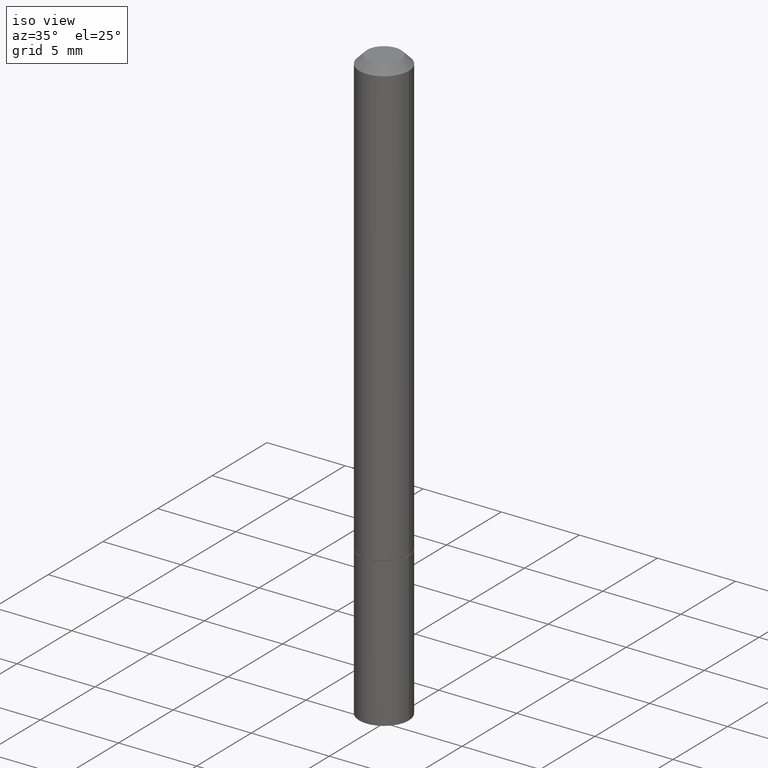
[diagram: clean part render]
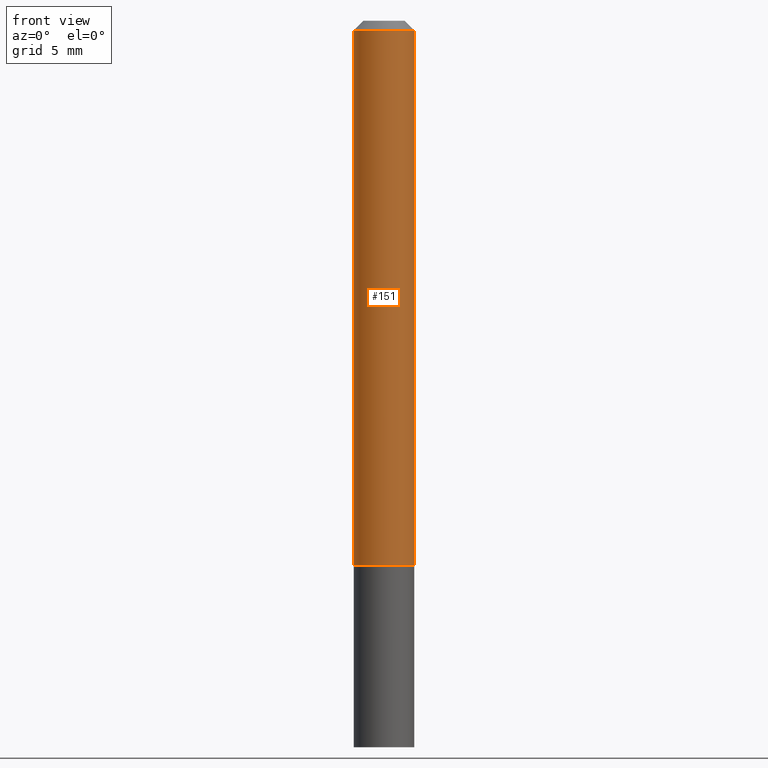
[diagram: tour spotlight — one face highlighted and labeled with its STEP entity id]
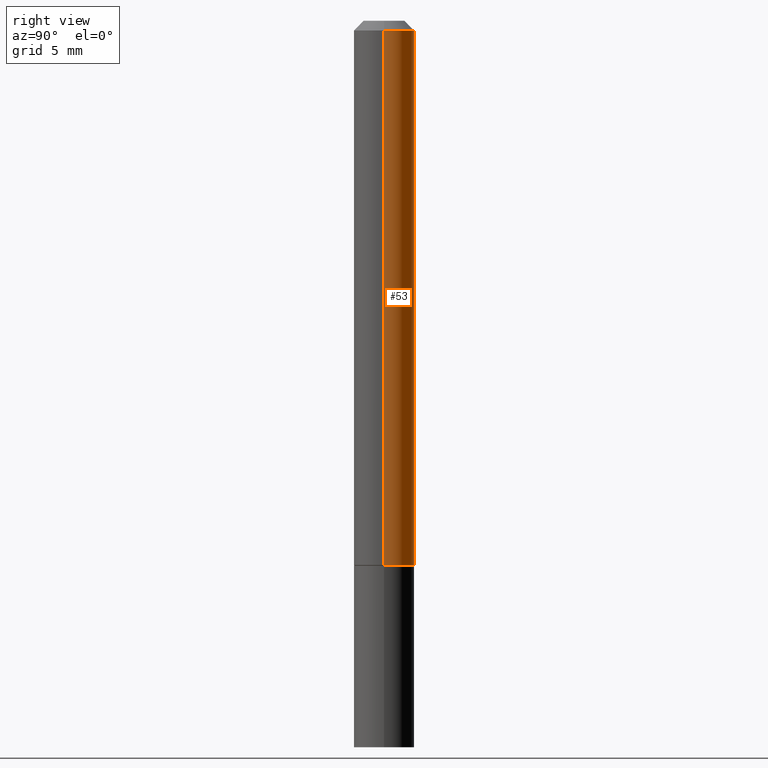
[diagram: tour spotlight — one face highlighted and labeled with its STEP entity id]
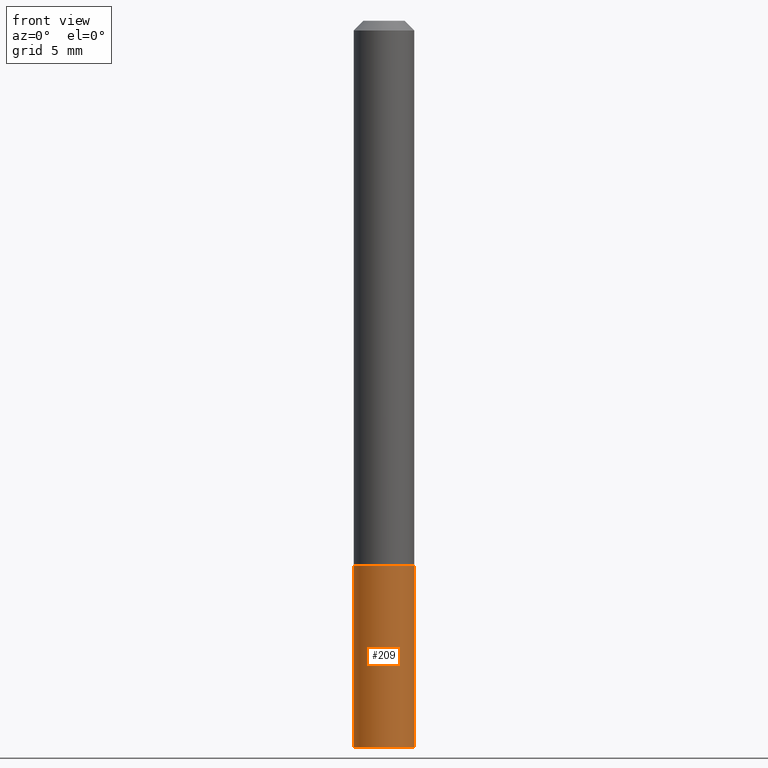
[diagram: tour spotlight — one face highlighted and labeled with its STEP entity id]
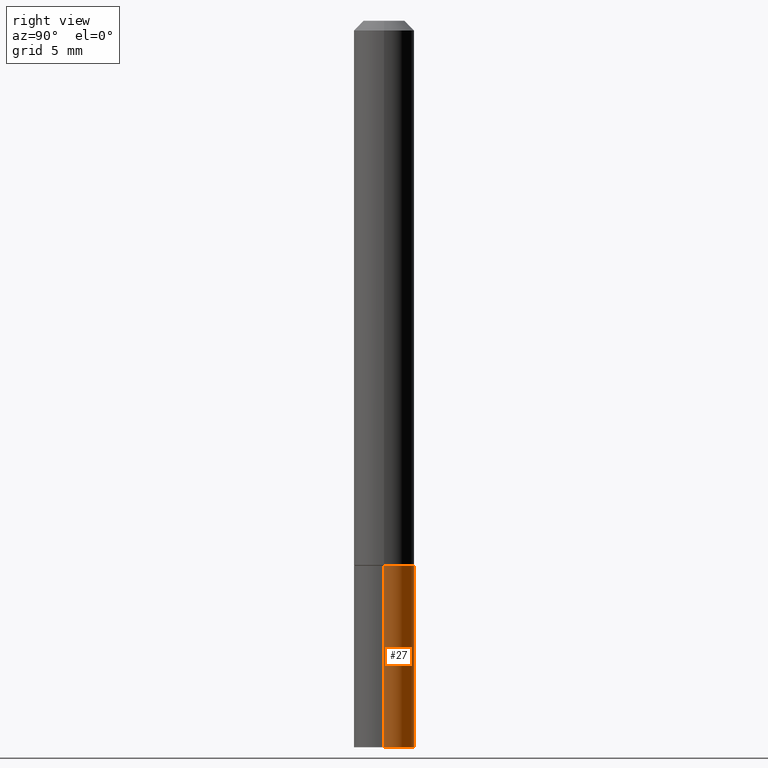
[diagram: tour spotlight — one face highlighted and labeled with its STEP entity id]
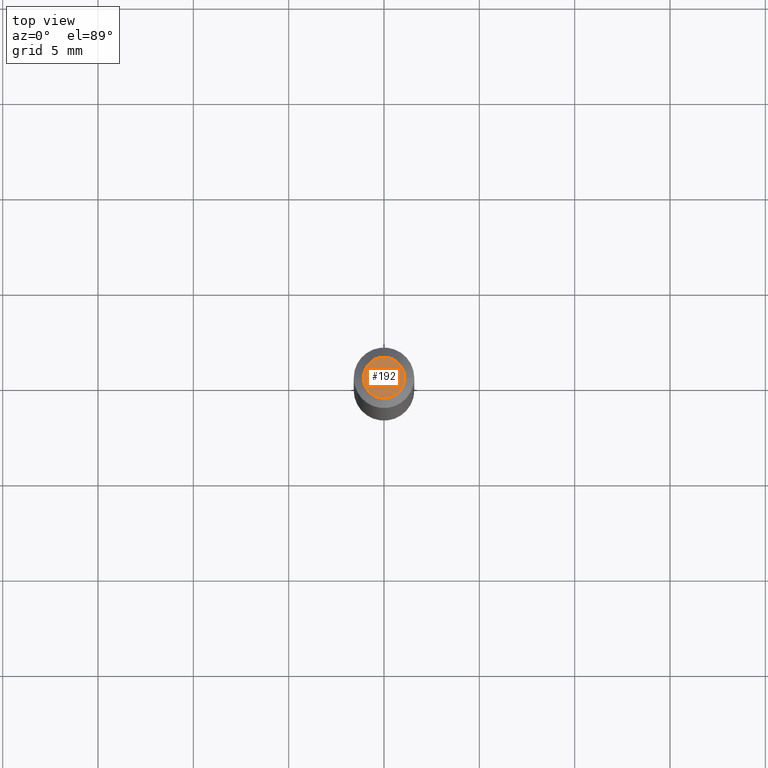
[diagram: tour spotlight — one face highlighted and labeled with its STEP entity id]
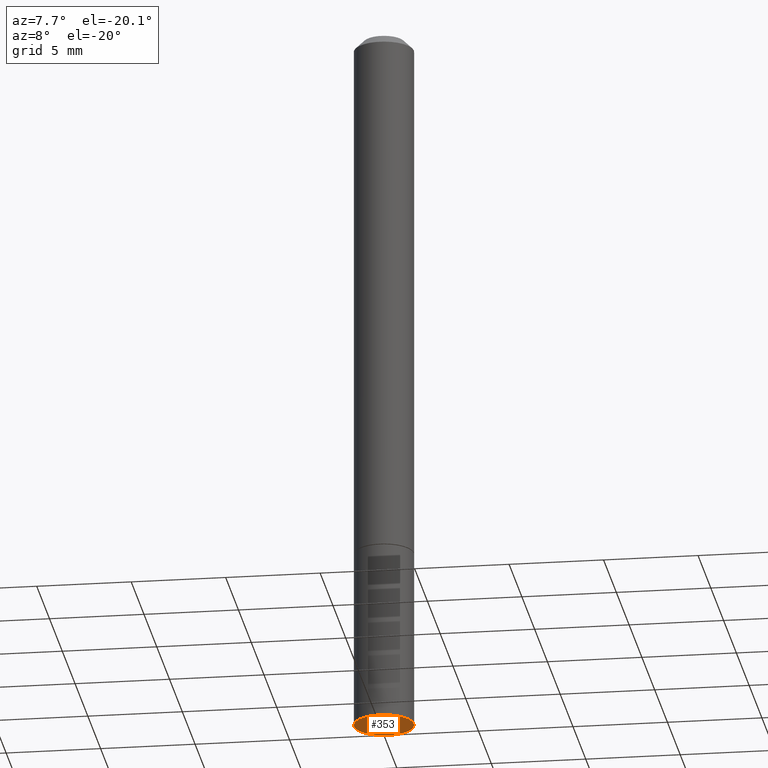
[diagram: tour spotlight — one face highlighted and labeled with its STEP entity id]
A machine part: a face-by-face anatomy tour. The part has 12 B-rep faces; the first image is the clean iso view, then the 6 largest visible faces are spotlighted one at a time (largest first), each with its STEP entity span.

Face 1 — front view, entity #151. In plain terms, the highlighted cylindrical surface (edge-blend (fillet) strip) has radius 1.5875 mm, axis along (-0, 0, 1).
Definition (entity closure, byte-faithful):
#8 = DIRECTION ( 'NONE',  ( -2.445468806185136597E-29, 3.491481338843145583E-15, 1.000000000000000000 ) ) ;
#16 = VERTEX_POINT ( 'NONE', #194 ) ;
#21 = DIRECTION ( 'NONE',  ( -2.445468806185136877E-29, 3.491481338843145188E-15, 1.000000000000000000 ) ) ;
#22 = VERTEX_POINT ( 'NONE', #81 ) ;
#38 = AXIS2_PLACEMENT_3D ( 'NONE', #260, #8, #125 ) ;
#42 = CARTESIAN_POINT ( 'NONE',  ( 2.748706938152093068E-29, -3.924425024859694639E-15, -1.123999999999999888 ) ) ;
#45 = VERTEX_POINT ( 'NONE', #329 ) ;
#63 = DIRECTION ( 'NONE',  ( -2.445468806185136597E-29, 3.491481338843145583E-15, 1.000000000000000000 ) ) ;
#81 = CARTESIAN_POINT ( 'NONE',  ( 0.06249999999999988204, -4.986107516375831334E-16, -0.02000000000000008715 ) ) ;
#100 = ORIENTED_EDGE ( 'NONE', *, *, #286, .T. ) ;
#125 = DIRECTION ( 'NONE',  ( 1.000000000000000000, -6.982962677686266711E-15, 4.876176775795935793E-29 ) ) ;
#140 = CIRCLE ( 'NONE', #148, 0.06249999999999988204 ) ;
#141 = EDGE_CURVE ( 'NONE', #45, #22, #140, .T. ) ;
#148 = AXIS2_PLACEMENT_3D ( 'NONE', #184, #63, #282 ) ;
#149 = VECTOR ( 'NONE', #360, 39.37007874015748143 ) ;
#150 = FACE_OUTER_BOUND ( 'NONE', #191, .T. ) ;
#151 = ADVANCED_FACE ( 'NONE', ( #150 ), #284, .T. ) ;
#154 = DIRECTION ( 'NONE',  ( -2.445468806185136597E-29, 3.491481338843145583E-15, 1.000000000000000000 ) ) ;
#155 = ORIENTED_EDGE ( 'NONE', *, *, #200, .F. ) ;
#157 = DIRECTION ( 'NONE',  ( 1.000000000000000000, -6.982962677686269077E-15, 0.000000000000000000 ) ) ;
#158 = ORIENTED_EDGE ( 'NONE', *, *, #206, .T. ) ;
#165 = LINE ( 'NONE', #199, #149 ) ;
#181 = CIRCLE ( 'NONE', #338, 0.06250000000000001388 ) ;
#184 = CARTESIAN_POINT ( 'NONE',  ( 4.890937612370294178E-31, -6.982962677686321191E-17, -0.02000000000000008715 ) ) ;
#191 = EDGE_LOOP ( 'NONE', ( #155, #158, #100, #344 ) ) ;
#194 = CARTESIAN_POINT ( 'NONE',  ( 0.06250000000000001388, -4.360860192215086309E-15, -1.123999999999999888 ) ) ;
#199 = CARTESIAN_POINT ( 'NONE',  ( 0.06249999999999995143, -4.364351673553913243E-16, 3.047610484872457418E-30 ) ) ;
#200 = EDGE_CURVE ( 'NONE', #245, #45, #308, .T. ) ;
#206 = EDGE_CURVE ( 'NONE', #245, #16, #181, .T. ) ;
#245 = VERTEX_POINT ( 'NONE', #352 ) ;
#255 = CARTESIAN_POINT ( 'NONE',  ( -0.06249999999999995143, 4.440892098500622710E-16, -3.074334431409313661E-30 ) ) ;
#260 = CARTESIAN_POINT ( 'NONE',  ( 0.000000000000000000, 0.000000000000000000, 0.000000000000000000 ) ) ;
#282 = DIRECTION ( 'NONE',  ( 1.000000000000000000, -6.982962677686266711E-15, 0.000000000000000000 ) ) ;
#284 = CYLINDRICAL_SURFACE ( 'NONE', #38, 0.06249999999999995143 ) ;
#286 = EDGE_CURVE ( 'NONE', #16, #22, #165, .T. ) ;
#308 = LINE ( 'NONE', #255, #365 ) ;
#329 = CARTESIAN_POINT ( 'NONE',  ( -0.06249999999999988204, 3.666055405785276317E-16, -0.02000000000000008715 ) ) ;
#338 = AXIS2_PLACEMENT_3D ( 'NONE', #42, #154, #157 ) ;
#344 = ORIENTED_EDGE ( 'NONE', *, *, #141, .F. ) ;
#352 = CARTESIAN_POINT ( 'NONE',  ( -0.06250000000000001388, -1.553038115968214380E-15, -1.123999999999999888 ) ) ;
#360 = DIRECTION ( 'NONE',  ( -2.445468806185136877E-29, 3.491481338843145188E-15, 1.000000000000000000 ) ) ;
#365 = VECTOR ( 'NONE', #21, 39.37007874015748143 ) ;

Face 2 — right view, entity #53. In plain terms, the highlighted cylindrical surface (edge-blend (fillet) strip) has radius 1.5875 mm, axis along (-0, 0, 1).
Definition (entity closure, byte-faithful):
#14 = ORIENTED_EDGE ( 'NONE', *, *, #286, .F. ) ;
#16 = VERTEX_POINT ( 'NONE', #194 ) ;
#21 = DIRECTION ( 'NONE',  ( -2.445468806185136877E-29, 3.491481338843145188E-15, 1.000000000000000000 ) ) ;
#22 = VERTEX_POINT ( 'NONE', #81 ) ;
#24 = ORIENTED_EDGE ( 'NONE', *, *, #348, .T. ) ;
#28 = CARTESIAN_POINT ( 'NONE',  ( 2.748706938152093068E-29, -3.924425024859694639E-15, -1.123999999999999888 ) ) ;
#35 = DIRECTION ( 'NONE',  ( -2.445468806185136597E-29, 3.491481338843145583E-15, 1.000000000000000000 ) ) ;
#45 = VERTEX_POINT ( 'NONE', #329 ) ;
#53 = ADVANCED_FACE ( 'NONE', ( #172 ), #146, .T. ) ;
#81 = CARTESIAN_POINT ( 'NONE',  ( 0.06249999999999988204, -4.986107516375831334E-16, -0.02000000000000008715 ) ) ;
#83 = CARTESIAN_POINT ( 'NONE',  ( 0.000000000000000000, 0.000000000000000000, 0.000000000000000000 ) ) ;
#104 = AXIS2_PLACEMENT_3D ( 'NONE', #210, #35, #177 ) ;
#123 = EDGE_CURVE ( 'NONE', #22, #45, #257, .T. ) ;
#138 = ORIENTED_EDGE ( 'NONE', *, *, #200, .T. ) ;
#146 = CYLINDRICAL_SURFACE ( 'NONE', #201, 0.06249999999999995143 ) ;
#149 = VECTOR ( 'NONE', #360, 39.37007874015748143 ) ;
#165 = LINE ( 'NONE', #199, #149 ) ;
#168 = CIRCLE ( 'NONE', #323, 0.06250000000000001388 ) ;
#172 = FACE_OUTER_BOUND ( 'NONE', #216, .T. ) ;
#173 = DIRECTION ( 'NONE',  ( 1.000000000000000000, -6.982962677686269077E-15, 0.000000000000000000 ) ) ;
#177 = DIRECTION ( 'NONE',  ( 1.000000000000000000, -6.982962677686266711E-15, 0.000000000000000000 ) ) ;
#194 = CARTESIAN_POINT ( 'NONE',  ( 0.06250000000000001388, -4.360860192215086309E-15, -1.123999999999999888 ) ) ;
#199 = CARTESIAN_POINT ( 'NONE',  ( 0.06249999999999995143, -4.364351673553913243E-16, 3.047610484872457418E-30 ) ) ;
#200 = EDGE_CURVE ( 'NONE', #245, #45, #308, .T. ) ;
#201 = AXIS2_PLACEMENT_3D ( 'NONE', #83, #299, #336 ) ;
#210 = CARTESIAN_POINT ( 'NONE',  ( 4.890937612370294178E-31, -6.982962677686321191E-17, -0.02000000000000008715 ) ) ;
#216 = EDGE_LOOP ( 'NONE', ( #24, #138, #218, #14 ) ) ;
#218 = ORIENTED_EDGE ( 'NONE', *, *, #123, .F. ) ;
#245 = VERTEX_POINT ( 'NONE', #352 ) ;
#255 = CARTESIAN_POINT ( 'NONE',  ( -0.06249999999999995143, 4.440892098500622710E-16, -3.074334431409313661E-30 ) ) ;
#257 = CIRCLE ( 'NONE', #104, 0.06249999999999988204 ) ;
#269 = DIRECTION ( 'NONE',  ( -2.445468806185136597E-29, 3.491481338843145583E-15, 1.000000000000000000 ) ) ;
#286 = EDGE_CURVE ( 'NONE', #16, #22, #165, .T. ) ;
#299 = DIRECTION ( 'NONE',  ( -2.445468806185136597E-29, 3.491481338843145583E-15, 1.000000000000000000 ) ) ;
#308 = LINE ( 'NONE', #255, #365 ) ;
#323 = AXIS2_PLACEMENT_3D ( 'NONE', #28, #269, #173 ) ;
#329 = CARTESIAN_POINT ( 'NONE',  ( -0.06249999999999988204, 3.666055405785276317E-16, -0.02000000000000008715 ) ) ;
#336 = DIRECTION ( 'NONE',  ( 1.000000000000000000, -6.982962677686266711E-15, 4.876176775795935793E-29 ) ) ;
#348 = EDGE_CURVE ( 'NONE', #16, #245, #168, .T. ) ;
#352 = CARTESIAN_POINT ( 'NONE',  ( -0.06250000000000001388, -1.553038115968214380E-15, -1.123999999999999888 ) ) ;
#360 = DIRECTION ( 'NONE',  ( -2.445468806185136877E-29, 3.491481338843145188E-15, 1.000000000000000000 ) ) ;
#365 = VECTOR ( 'NONE', #21, 39.37007874015748143 ) ;

Face 3 — front view, entity #209. In plain terms, the highlighted cylindrical surface (edge-blend (fillet) strip) has radius 1.5875 mm, axis along (-0, 0, 1).
Definition (entity closure, byte-faithful):
#11 = CIRCLE ( 'NONE', #43, 0.06250000000000001388 ) ;
#36 = VERTEX_POINT ( 'NONE', #334 ) ;
#43 = AXIS2_PLACEMENT_3D ( 'NONE', #301, #227, #325 ) ;
#61 = EDGE_CURVE ( 'NONE', #36, #248, #11, .T. ) ;
#68 = EDGE_CURVE ( 'NONE', #207, #248, #363, .T. ) ;
#99 = DIRECTION ( 'NONE',  ( -2.445468806185136877E-29, 3.491481338843145188E-15, 1.000000000000000000 ) ) ;
#101 = EDGE_CURVE ( 'NONE', #319, #207, #152, .T. ) ;
#106 = DIRECTION ( 'NONE',  ( -2.445468806185136597E-29, 3.491481338843145583E-15, 1.000000000000000000 ) ) ;
#122 = DIRECTION ( 'NONE',  ( 1.000000000000000000, -6.982962677686261189E-15, 0.000000000000000000 ) ) ;
#132 = CARTESIAN_POINT ( 'NONE',  ( 0.06250000000000001388, -5.673657175620109057E-15, -1.499999999999999778 ) ) ;
#152 = CIRCLE ( 'NONE', #316, 0.06250000000000001388 ) ;
#164 = CARTESIAN_POINT ( 'NONE',  ( 0.06250000000000001388, -4.364351673553918173E-16, 3.047610484872460571E-30 ) ) ;
#166 = VECTOR ( 'NONE', #170, 39.37007874015748143 ) ;
#169 = EDGE_CURVE ( 'NONE', #319, #36, #212, .T. ) ;
#170 = DIRECTION ( 'NONE',  ( -2.445468806185136877E-29, 3.491481338843145188E-15, 1.000000000000000000 ) ) ;
#187 = ORIENTED_EDGE ( 'NONE', *, *, #169, .F. ) ;
#207 = VERTEX_POINT ( 'NONE', #132 ) ;
#209 = ADVANCED_FACE ( 'NONE', ( #219 ), #350, .T. ) ;
#212 = LINE ( 'NONE', #311, #242 ) ;
#219 = FACE_OUTER_BOUND ( 'NONE', #222, .T. ) ;
#220 = ORIENTED_EDGE ( 'NONE', *, *, #61, .F. ) ;
#221 = DIRECTION ( 'NONE',  ( 1.000000000000000000, -6.982962677686267499E-15, 4.876176775795935793E-29 ) ) ;
#222 = EDGE_LOOP ( 'NONE', ( #187, #263, #345, #220 ) ) ;
#227 = DIRECTION ( 'NONE',  ( -2.445468806185136597E-29, 3.491481338843145583E-15, 1.000000000000000000 ) ) ;
#242 = VECTOR ( 'NONE', #99, 39.37007874015748143 ) ;
#248 = VERTEX_POINT ( 'NONE', #296 ) ;
#263 = ORIENTED_EDGE ( 'NONE', *, *, #101, .T. ) ;
#265 = CARTESIAN_POINT ( 'NONE',  ( 0.000000000000000000, 0.000000000000000000, 0.000000000000000000 ) ) ;
#275 = AXIS2_PLACEMENT_3D ( 'NONE', #265, #106, #221 ) ;
#296 = CARTESIAN_POINT ( 'NONE',  ( 0.06250000000000001388, -4.364351673553930105E-15, -1.124999999999999778 ) ) ;
#301 = CARTESIAN_POINT ( 'NONE',  ( 2.751152406958278111E-29, -3.927916506198538435E-15, -1.124999999999999778 ) ) ;
#305 = CARTESIAN_POINT ( 'NONE',  ( -0.06250000000000001388, -4.138480047381564901E-15, -1.499999999999999778 ) ) ;
#311 = CARTESIAN_POINT ( 'NONE',  ( -0.06250000000000001388, 4.440892098500627148E-16, -3.074334431409317165E-30 ) ) ;
#316 = AXIS2_PLACEMENT_3D ( 'NONE', #339, #341, #122 ) ;
#319 = VERTEX_POINT ( 'NONE', #305 ) ;
#325 = DIRECTION ( 'NONE',  ( 1.000000000000000000, -6.982962677686269077E-15, 0.000000000000000000 ) ) ;
#334 = CARTESIAN_POINT ( 'NONE',  ( -0.06250000000000001388, -4.138480047381564901E-15, -1.124999999999999778 ) ) ;
#339 = CARTESIAN_POINT ( 'NONE',  ( 3.668203209277704335E-29, -5.237222008264717388E-15, -1.499999999999999778 ) ) ;
#341 = DIRECTION ( 'NONE',  ( -2.445468806185136597E-29, 3.491481338843145583E-15, 1.000000000000000000 ) ) ;
#345 = ORIENTED_EDGE ( 'NONE', *, *, #68, .T. ) ;
#350 = CYLINDRICAL_SURFACE ( 'NONE', #275, 0.06250000000000001388 ) ;
#363 = LINE ( 'NONE', #164, #166 ) ;

Face 4 — right view, entity #27. In plain terms, the highlighted cylindrical surface (edge-blend (fillet) strip) has radius 1.5875 mm, axis along (-0, 0, 1).
Definition (entity closure, byte-faithful):
#27 = ADVANCED_FACE ( 'NONE', ( #297 ), #103, .T. ) ;
#36 = VERTEX_POINT ( 'NONE', #334 ) ;
#54 = DIRECTION ( 'NONE',  ( 1.000000000000000000, -6.982962677686267499E-15, 4.876176775795935793E-29 ) ) ;
#65 = CARTESIAN_POINT ( 'NONE',  ( 2.751152406958278111E-29, -3.927916506198538435E-15, -1.124999999999999778 ) ) ;
#66 = DIRECTION ( 'NONE',  ( -2.445468806185136597E-29, 3.491481338843145583E-15, 1.000000000000000000 ) ) ;
#68 = EDGE_CURVE ( 'NONE', #207, #248, #363, .T. ) ;
#76 = ORIENTED_EDGE ( 'NONE', *, *, #68, .F. ) ;
#90 = DIRECTION ( 'NONE',  ( 1.000000000000000000, -6.982962677686269077E-15, 0.000000000000000000 ) ) ;
#91 = AXIS2_PLACEMENT_3D ( 'NONE', #65, #66, #90 ) ;
#99 = DIRECTION ( 'NONE',  ( -2.445468806185136877E-29, 3.491481338843145188E-15, 1.000000000000000000 ) ) ;
#103 = CYLINDRICAL_SURFACE ( 'NONE', #238, 0.06250000000000001388 ) ;
#107 = EDGE_CURVE ( 'NONE', #248, #36, #356, .T. ) ;
#117 = CARTESIAN_POINT ( 'NONE',  ( 0.000000000000000000, 0.000000000000000000, 0.000000000000000000 ) ) ;
#132 = CARTESIAN_POINT ( 'NONE',  ( 0.06250000000000001388, -5.673657175620109057E-15, -1.499999999999999778 ) ) ;
#137 = EDGE_CURVE ( 'NONE', #207, #319, #288, .T. ) ;
#156 = ORIENTED_EDGE ( 'NONE', *, *, #107, .F. ) ;
#164 = CARTESIAN_POINT ( 'NONE',  ( 0.06250000000000001388, -4.364351673553918173E-16, 3.047610484872460571E-30 ) ) ;
#166 = VECTOR ( 'NONE', #170, 39.37007874015748143 ) ;
#169 = EDGE_CURVE ( 'NONE', #319, #36, #212, .T. ) ;
#170 = DIRECTION ( 'NONE',  ( -2.445468806185136877E-29, 3.491481338843145188E-15, 1.000000000000000000 ) ) ;
#183 = DIRECTION ( 'NONE',  ( -2.445468806185136597E-29, 3.491481338843145583E-15, 1.000000000000000000 ) ) ;
#207 = VERTEX_POINT ( 'NONE', #132 ) ;
#212 = LINE ( 'NONE', #311, #242 ) ;
#238 = AXIS2_PLACEMENT_3D ( 'NONE', #117, #252, #54 ) ;
#242 = VECTOR ( 'NONE', #99, 39.37007874015748143 ) ;
#248 = VERTEX_POINT ( 'NONE', #296 ) ;
#252 = DIRECTION ( 'NONE',  ( -2.445468806185136597E-29, 3.491481338843145583E-15, 1.000000000000000000 ) ) ;
#277 = DIRECTION ( 'NONE',  ( 1.000000000000000000, -6.982962677686261189E-15, 0.000000000000000000 ) ) ;
#288 = CIRCLE ( 'NONE', #302, 0.06250000000000001388 ) ;
#289 = ORIENTED_EDGE ( 'NONE', *, *, #137, .T. ) ;
#296 = CARTESIAN_POINT ( 'NONE',  ( 0.06250000000000001388, -4.364351673553930105E-15, -1.124999999999999778 ) ) ;
#297 = FACE_OUTER_BOUND ( 'NONE', #349, .T. ) ;
#302 = AXIS2_PLACEMENT_3D ( 'NONE', #310, #183, #277 ) ;
#305 = CARTESIAN_POINT ( 'NONE',  ( -0.06250000000000001388, -4.138480047381564901E-15, -1.499999999999999778 ) ) ;
#309 = ORIENTED_EDGE ( 'NONE', *, *, #169, .T. ) ;
#310 = CARTESIAN_POINT ( 'NONE',  ( 3.668203209277704335E-29, -5.237222008264717388E-15, -1.499999999999999778 ) ) ;
#311 = CARTESIAN_POINT ( 'NONE',  ( -0.06250000000000001388, 4.440892098500627148E-16, -3.074334431409317165E-30 ) ) ;
#319 = VERTEX_POINT ( 'NONE', #305 ) ;
#334 = CARTESIAN_POINT ( 'NONE',  ( -0.06250000000000001388, -4.138480047381564901E-15, -1.124999999999999778 ) ) ;
#349 = EDGE_LOOP ( 'NONE', ( #289, #309, #156, #76 ) ) ;
#356 = CIRCLE ( 'NONE', #91, 0.06250000000000001388 ) ;
#363 = LINE ( 'NONE', #164, #166 ) ;

Face 5 — top view, entity #192. In plain terms, the highlighted planar face has unit normal (0, -0, -1).
Definition (entity closure, byte-faithful):
#1 = CARTESIAN_POINT ( 'NONE',  ( 2.967759138016655168E-16, 0.04249999999999988509, -1.761332880864859756E-16 ) ) ;
#32 = AXIS2_PLACEMENT_3D ( 'NONE', #102, #130, #300 ) ;
#41 = FACE_OUTER_BOUND ( 'NONE', #46, .T. ) ;
#46 = EDGE_LOOP ( 'NONE', ( #67, #190 ) ) ;
#67 = ORIENTED_EDGE ( 'NONE', *, *, #272, .T. ) ;
#94 = EDGE_CURVE ( 'NONE', #105, #340, #317, .T. ) ;
#95 = CARTESIAN_POINT ( 'NONE',  ( 0.04249999999999988509, -3.950909582714363501E-16, -5.549066237130292766E-17 ) ) ;
#98 = AXIS2_PLACEMENT_3D ( 'NONE', #1, #121, #202 ) ;
#102 = CARTESIAN_POINT ( 'NONE',  ( 1.357006838635785746E-45, -1.937446121494581442E-31, -5.549066237130534971E-17 ) ) ;
#105 = VERTEX_POINT ( 'NONE', #95 ) ;
#111 = AXIS2_PLACEMENT_3D ( 'NONE', #180, #124, #278 ) ;
#121 = DIRECTION ( 'NONE',  ( 2.438088387897960049E-29, -3.491481338843145188E-15, -1.000000000000000000 ) ) ;
#124 = DIRECTION ( 'NONE',  ( -2.445468806185136597E-29, 3.491481338843145583E-15, 1.000000000000000000 ) ) ;
#130 = DIRECTION ( 'NONE',  ( -2.445468806185136597E-29, 3.491481338843145583E-15, 1.000000000000000000 ) ) ;
#139 = CARTESIAN_POINT ( 'NONE',  ( -0.04249999999999988509, 3.316907271900965249E-16, -5.549066237130754373E-17 ) ) ;
#175 = CIRCLE ( 'NONE', #32, 0.04249999999999988509 ) ;
#180 = CARTESIAN_POINT ( 'NONE',  ( 1.357006838635785746E-45, -1.937446121494581442E-31, -5.549066237130534971E-17 ) ) ;
#190 = ORIENTED_EDGE ( 'NONE', *, *, #94, .T. ) ;
#192 = ADVANCED_FACE ( 'NONE', ( #41 ), #254, .F. ) ;
#202 = DIRECTION ( 'NONE',  ( -1.000000000000000000, 6.982962677686265922E-15, -4.876176775795935793E-29 ) ) ;
#254 = PLANE ( 'NONE',  #98 ) ;
#272 = EDGE_CURVE ( 'NONE', #340, #105, #175, .T. ) ;
#278 = DIRECTION ( 'NONE',  ( 1.000000000000000000, -6.982962677686267499E-15, 4.870577812114097619E-29 ) ) ;
#300 = DIRECTION ( 'NONE',  ( 1.000000000000000000, -6.982962677686267499E-15, 4.870577812114097619E-29 ) ) ;
#317 = CIRCLE ( 'NONE', #111, 0.04249999999999988509 ) ;
#340 = VERTEX_POINT ( 'NONE', #139 ) ;

Face 6 — auxiliary view, entity #353. In plain terms, the highlighted planar face has unit normal (0, -0, -1).
Definition (entity closure, byte-faithful):
#101 = EDGE_CURVE ( 'NONE', #319, #207, #152, .T. ) ;
#108 = EDGE_LOOP ( 'NONE', ( #131, #354 ) ) ;
#122 = DIRECTION ( 'NONE',  ( 1.000000000000000000, -6.982962677686261189E-15, 0.000000000000000000 ) ) ;
#131 = ORIENTED_EDGE ( 'NONE', *, *, #137, .F. ) ;
#132 = CARTESIAN_POINT ( 'NONE',  ( 0.06250000000000001388, -5.673657175620109057E-15, -1.499999999999999778 ) ) ;
#137 = EDGE_CURVE ( 'NONE', #207, #319, #288, .T. ) ;
#143 = DIRECTION ( 'NONE',  ( 2.438088387897960049E-29, -3.491481338843145188E-15, -1.000000000000000000 ) ) ;
#152 = CIRCLE ( 'NONE', #316, 0.06250000000000001388 ) ;
#162 = FACE_OUTER_BOUND ( 'NONE', #108, .T. ) ;
#183 = DIRECTION ( 'NONE',  ( -2.445468806185136597E-29, 3.491481338843145583E-15, 1.000000000000000000 ) ) ;
#207 = VERTEX_POINT ( 'NONE', #132 ) ;
#230 = PLANE ( 'NONE',  #239 ) ;
#239 = AXIS2_PLACEMENT_3D ( 'NONE', #303, #143, #332 ) ;
#277 = DIRECTION ( 'NONE',  ( 1.000000000000000000, -6.982962677686261189E-15, 0.000000000000000000 ) ) ;
#288 = CIRCLE ( 'NONE', #302, 0.06250000000000001388 ) ;
#302 = AXIS2_PLACEMENT_3D ( 'NONE', #310, #183, #277 ) ;
#303 = CARTESIAN_POINT ( 'NONE',  ( 4.364351673554284500E-16, 0.06249999999999478195, -1.500000000000000222 ) ) ;
#305 = CARTESIAN_POINT ( 'NONE',  ( -0.06250000000000001388, -4.138480047381564901E-15, -1.499999999999999778 ) ) ;
#310 = CARTESIAN_POINT ( 'NONE',  ( 3.668203209277704335E-29, -5.237222008264717388E-15, -1.499999999999999778 ) ) ;
#316 = AXIS2_PLACEMENT_3D ( 'NONE', #339, #341, #122 ) ;
#319 = VERTEX_POINT ( 'NONE', #305 ) ;
#332 = DIRECTION ( 'NONE',  ( -1.000000000000000000, 6.982962677686265922E-15, -4.876176775795935793E-29 ) ) ;
#339 = CARTESIAN_POINT ( 'NONE',  ( 3.668203209277704335E-29, -5.237222008264717388E-15, -1.499999999999999778 ) ) ;
#341 = DIRECTION ( 'NONE',  ( -2.445468806185136597E-29, 3.491481338843145583E-15, 1.000000000000000000 ) ) ;
#353 = ADVANCED_FACE ( 'NONE', ( #162 ), #230, .T. ) ;
#354 = ORIENTED_EDGE ( 'NONE', *, *, #101, .F. ) ;